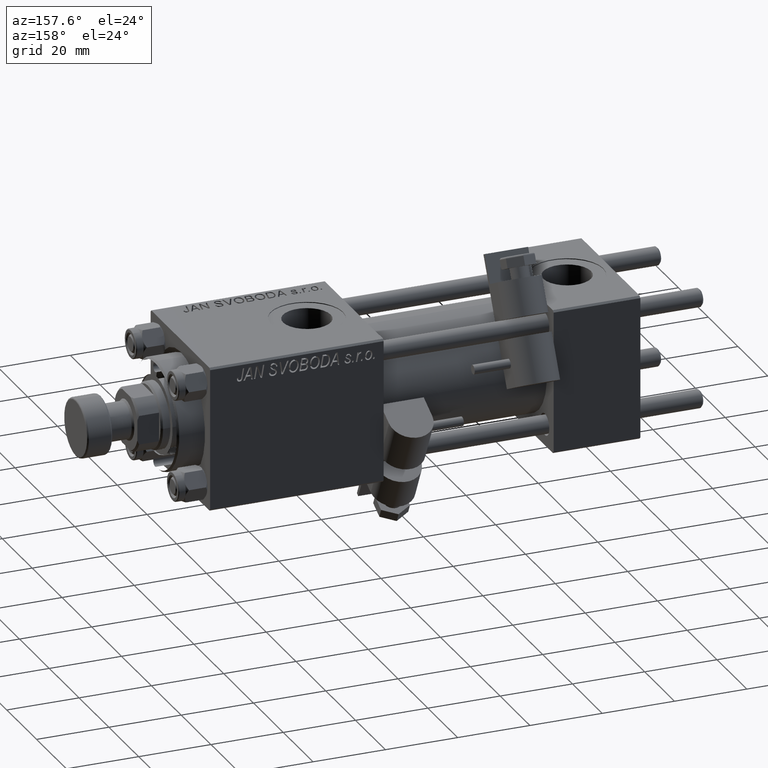
[diagram: clean part render]
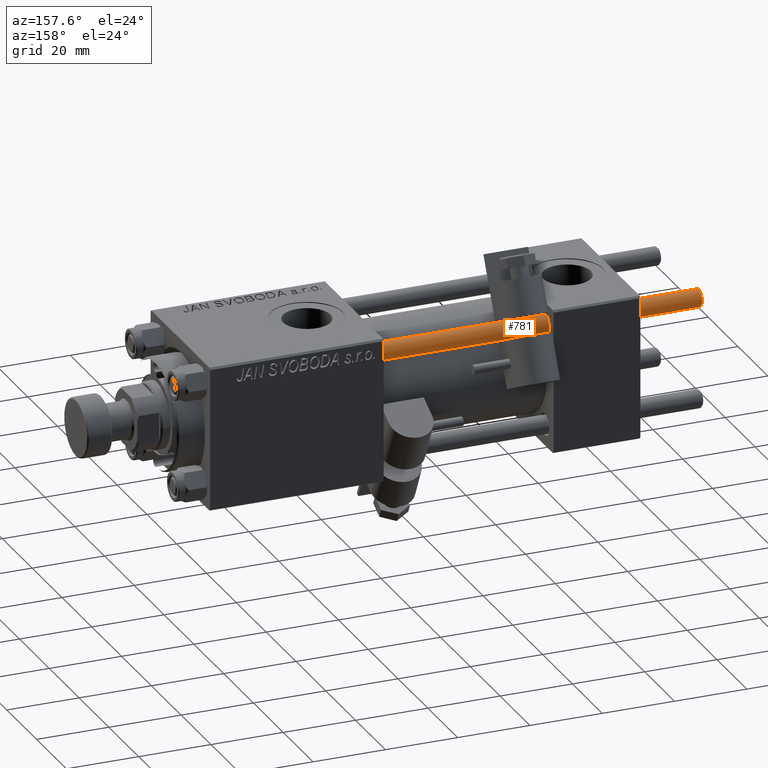
[diagram: same view with one face highlighted and labeled with its STEP entity id]
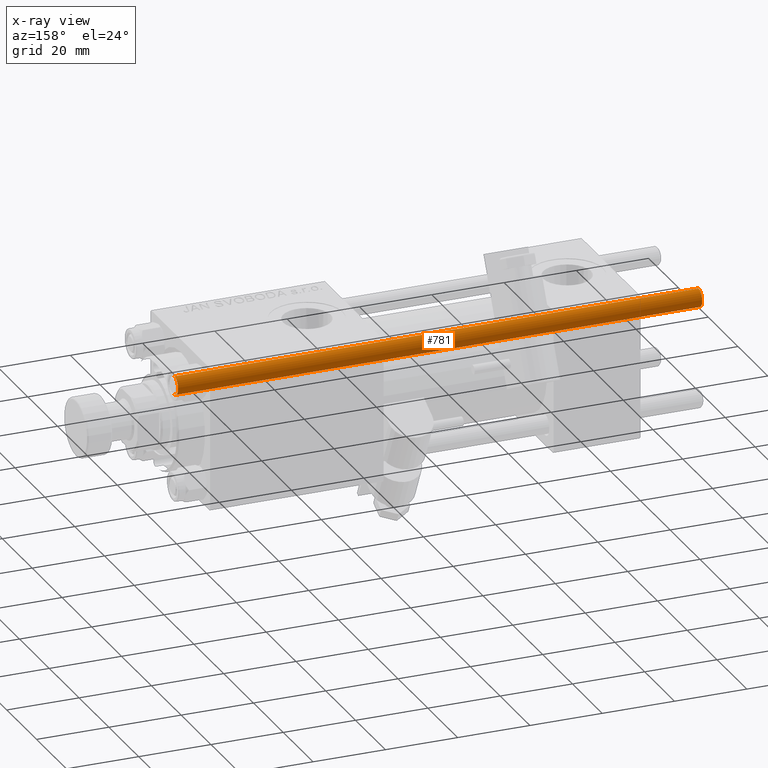
[diagram: x-ray of the same camera — body ghosted, the highlighted face saturated]
A machine part, auxiliary view. The second image highlights one B-rep face of the part: STEP entity #781.
The next image is the same camera in x-ray: the body ghosted, the highlighted face saturated — about 0% of this face is hidden behind the body in this view.
In plain terms, the highlighted cylindrical surface (edge-blend (fillet) strip) has radius 2.5 mm, axis along (-1, -0, -0).
Its self-contained STEP definition (entity closure, byte-faithful):
#781 = ADVANCED_FACE ( 'NONE', ( #6385 ), #47443, .T. ) ;
#3208 = DIRECTION ( 'NONE',  ( -0.000000000000000000, -0.000000000000000000, -1.000000000000000000 ) ) ;
#3231 = VERTEX_POINT ( 'NONE', #15836 ) ;
#3868 = VECTOR ( 'NONE', #52282, 1000.000000000000000 ) ;
#4026 = AXIS2_PLACEMENT_3D ( 'NONE', #47631, #23228, #39046 ) ;
#4860 = ORIENTED_EDGE ( 'NONE', *, *, #30244, .F. ) ;
#6385 = FACE_OUTER_BOUND ( 'NONE', #16461, .T. ) ;
#7090 = ORIENTED_EDGE ( 'NONE', *, *, #51022, .T. ) ;
#8632 = EDGE_CURVE ( 'NONE', #3231, #51934, #14510, .T. ) ;
#10670 = VECTOR ( 'NONE', #3208, 1000.000000000000000 ) ;
#14091 = ORIENTED_EDGE ( 'NONE', *, *, #8632, .T. ) ;
#14510 = LINE ( 'NONE', #31691, #10670 ) ;
#15836 = CARTESIAN_POINT ( 'NONE',  ( 2.500000000000000000, 3.061616997868383141E-16, 145.5000000000000284 ) ) ;
#16461 = EDGE_LOOP ( 'NONE', ( #7090, #14091, #45784, #4860 ) ) ;
#18974 = EDGE_CURVE ( 'NONE', #51934, #44185, #40848, .T. ) ;
#22485 = AXIS2_PLACEMENT_3D ( 'NONE', #27063, #22500, #39116 ) ;
#22500 = DIRECTION ( 'NONE',  ( -0.000000000000000000, -0.000000000000000000, -1.000000000000000000 ) ) ;
#23228 = DIRECTION ( 'NONE',  ( -0.000000000000000000, -0.000000000000000000, 1.000000000000000000 ) ) ;
#27063 = CARTESIAN_POINT ( 'NONE',  ( 0.000000000000000000, 0.000000000000000000, 146.0000000000000000 ) ) ;
#27748 = CARTESIAN_POINT ( 'NONE',  ( 2.500000000000000000, 3.061616997868383141E-16, 0.5000000000000559552 ) ) ;
#29850 = DIRECTION ( 'NONE',  ( 1.000000000000000000, 0.000000000000000000, 0.000000000000000000 ) ) ;
#30244 = EDGE_CURVE ( 'NONE', #49125, #44185, #35925, .T. ) ;
#30410 = CARTESIAN_POINT ( 'NONE',  ( -2.500000000000000000, 0.000000000000000000, 145.5000000000000284 ) ) ;
#31691 = CARTESIAN_POINT ( 'NONE',  ( 2.500000000000000000, 3.061616997868383141E-16, 146.0000000000000000 ) ) ;
#35925 = LINE ( 'NONE', #51761, #3868 ) ;
#36913 = AXIS2_PLACEMENT_3D ( 'NONE', #37358, #37630, #29850 ) ;
#37358 = CARTESIAN_POINT ( 'NONE',  ( 0.000000000000000000, 0.000000000000000000, 145.5000000000000284 ) ) ;
#37630 = DIRECTION ( 'NONE',  ( 0.000000000000000000, 0.000000000000000000, -1.000000000000000000 ) ) ;
#37792 = CIRCLE ( 'NONE', #36913, 2.500000000000000000 ) ;
#39046 = DIRECTION ( 'NONE',  ( 1.000000000000000000, 0.000000000000000000, 0.000000000000000000 ) ) ;
#39116 = DIRECTION ( 'NONE',  ( -1.000000000000000000, 0.000000000000000000, 0.000000000000000000 ) ) ;
#40848 = CIRCLE ( 'NONE', #4026, 2.500000000000000000 ) ;
#44185 = VERTEX_POINT ( 'NONE', #47293 ) ;
#45784 = ORIENTED_EDGE ( 'NONE', *, *, #18974, .T. ) ;
#47293 = CARTESIAN_POINT ( 'NONE',  ( -2.500000000000000000, 0.000000000000000000, 0.5000000000000559552 ) ) ;
#47443 = CYLINDRICAL_SURFACE ( 'NONE', #22485, 2.500000000000000000 ) ;
#47631 = CARTESIAN_POINT ( 'NONE',  ( 0.000000000000000000, 0.000000000000000000, 0.5000000000000559552 ) ) ;
#49125 = VERTEX_POINT ( 'NONE', #30410 ) ;
#51022 = EDGE_CURVE ( 'NONE', #49125, #3231, #37792, .T. ) ;
#51761 = CARTESIAN_POINT ( 'NONE',  ( -2.500000000000000000, 0.000000000000000000, 146.0000000000000000 ) ) ;
#51934 = VERTEX_POINT ( 'NONE', #27748 ) ;
#52282 = DIRECTION ( 'NONE',  ( -0.000000000000000000, -0.000000000000000000, -1.000000000000000000 ) ) ;